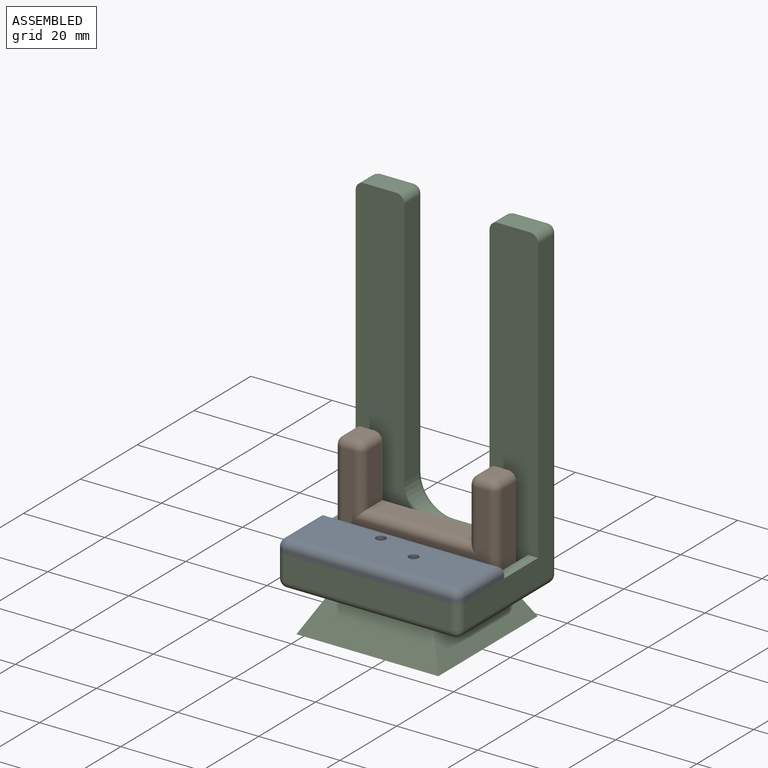
[diagram: assembled view]
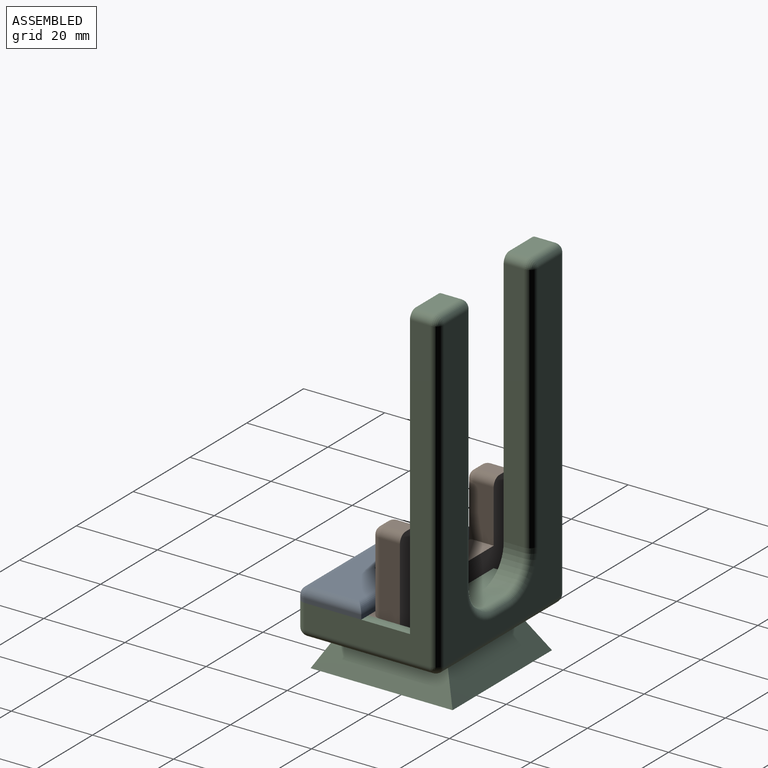
[diagram: assembled view, second angle]
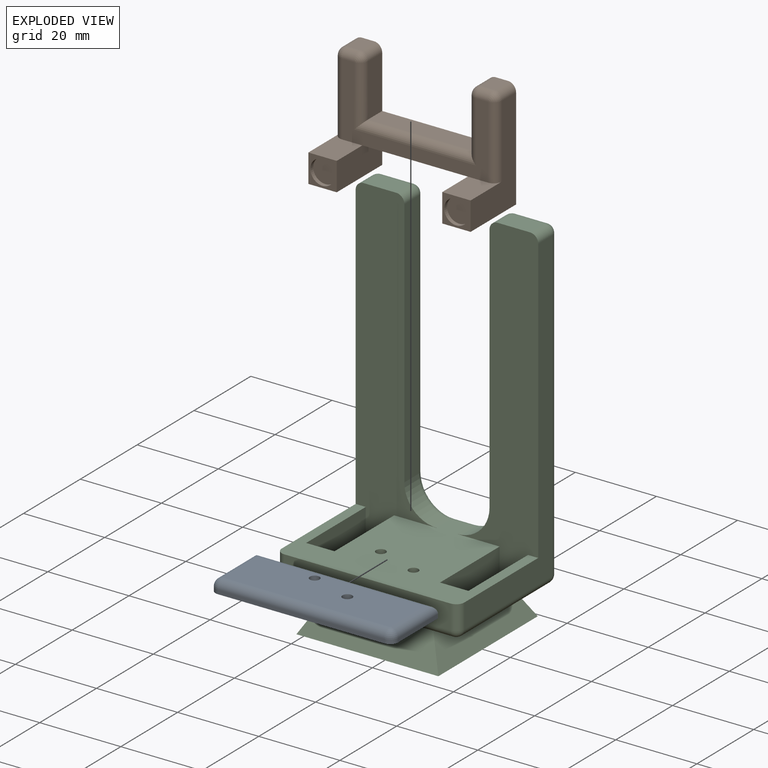
[diagram: exploded view]
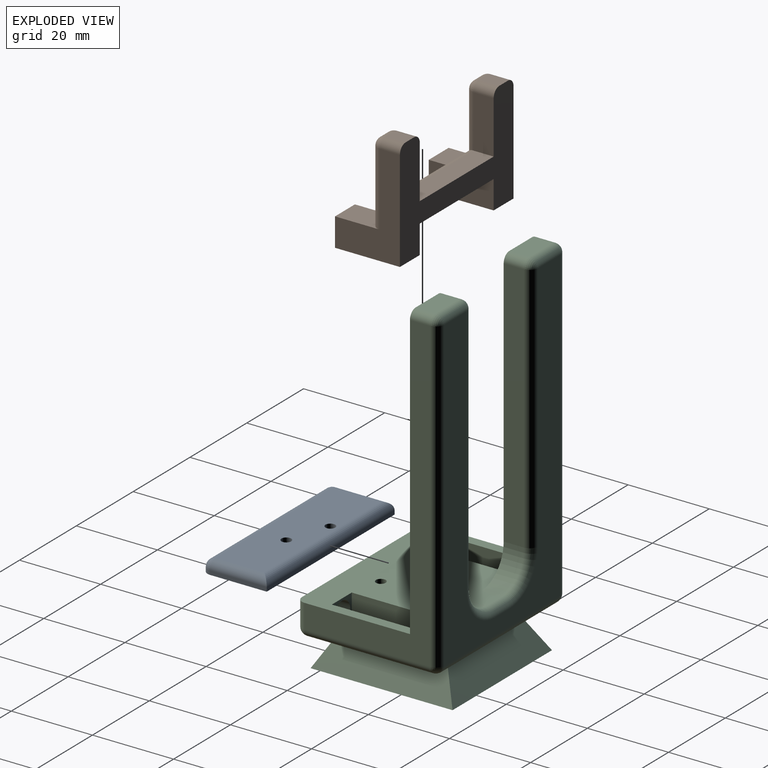
[diagram: exploded view, second angle]
ASSEMBLY  parts=3 mates=2
PART A: 16 faces, bbox 45x16x3 mm
  f0: plane 45x1mm, normal (0,1,0), area 45mm2, adj f1,f4,f7,f10
  f1: plane 14x1mm, normal (-1,0,0), area 14mm2, adj f0,f7,f12,f15
  f2: plane 41x1mm, normal (0,-1,0), area 41mm2, adj f7,f9,f13,f15
  f3: cylinder r=1.2mm len=3mm, axis (0,0,-1), area 22.6mm2, adj f6,f7
  f4: plane 14x1mm, normal (1,0,0), area 14mm2, adj f0,f7,f8,f9
  f5: cylinder r=1.2mm len=3mm, axis (0,0,-1), area 22.6mm2, adj f6,f7
  f6: plane 41x12mm, normal (0,0,1), area 483mm2, adj f3,f5,f8,f10,f12,f13
  f7: plane 45x16mm, normal (0,0,-1), area 709.2mm2, adj f0,f1,f2,f3,f4,f5,f9,f15
  f8: cylinder r=2mm len=14mm, axis (0,-1,0), area 41.7mm2, adj f4,f6,f10,f11
  f9: cylinder r=2mm len=2mm, axis (0,0,1), area 3.1mm2, adj f2,f4,f7,f11
  f10: cylinder r=2mm len=45mm, axis (1,0,0), area 136.8mm2, adj f0,f6,f8,f12
  f11: sphere r=2mm, area 6.3mm2, adj f8,f9,f13
  f12: cylinder r=2mm len=14mm, axis (0,1,0), area 41.7mm2, adj f1,f6,f10,f14
  f13: cylinder r=2mm len=41mm, axis (-1,0,0), area 128.8mm2, adj f2,f6,f11,f14
  f14: sphere r=2mm, area 6.3mm2, adj f12,f13,f15
  f15: cylinder r=2mm len=2mm, axis (0,0,-1), area 3.1mm2, adj f1,f2,f7,f14
PART B: 37 faces, bbox 40x16x27 mm
  f0: plane 16x7.01mm, normal (1,0,0), area 112mm2, adj f1,f3,f4,f5,f13
  f1: plane 11x7mm, normal (0,0,1), area 63.9mm2, adj f0,f2,f5,f19,f28
  f2: plane 25.01x16mm, normal (-1,0,0), area 202mm2, adj f1,f3,f4,f5,f22,f28
  f3: plane 16x7mm, normal (0,0,-1), area 112mm2, adj f0,f2,f4,f5
  f4: plane 40x27.01mm, normal (0,1,0), area 504.6mm2, adj f0,f2,f3,f9,f10,f11,f13,f14
  f5: plane 7x7mm, normal (0,-1,0), area 20.7mm2, adj f0,f1,f2,f3,f6
  f6: cylinder r=3mm len=6mm, axis (0,-1,0), area 18.8mm2, adj f5,f7
  f7: plane 6x6mm, normal (0,-1,0), area 28.3mm2, adj f6
  f8: plane 11x7mm, normal (0,0,1), area 63.9mm2, adj f9,f11,f12,f19,f26
  f9: plane 16x7mm, normal (-1,0,0), area 112mm2, adj f4,f8,f10,f12,f13
  f10: plane 16x7mm, normal (0,0,-1), area 112mm2, adj f4,f9,f11,f12
  f11: plane 25x16mm, normal (1,0,0), area 202mm2, adj f4,f8,f10,f12,f25,f26
  f12: plane 7x7mm, normal (0,-1,0), area 20.7mm2, adj f8,f9,f10,f11,f20
  f13: plane 26x7mm, normal (0,0,-1), area 182mm2, adj f0,f4,f9,f19
  f14: plane 5x3mm, normal (0,0,1), area 15mm2, adj f4,f22,f23,f32
  f15: plane 13x5mm, normal (1,0,0), area 65mm2, adj f4,f16,f23,f36
  f16: plane 26x5mm, normal (0,0,1), area 130mm2, adj f4,f15,f17,f35
  f17: plane 13x5mm, normal (-1,0,0), area 65mm2, adj f4,f16,f24,f33
  f18: plane 5x3mm, normal (0,0,1), area 15mm2, adj f4,f24,f25,f29
  f19: plane 36x18.01mm, normal (0,-1,0), area 198.3mm2, adj f1,f8,f13,f26,f28,f29,f32,f33
  f20: cylinder r=3mm len=6mm, axis (0,-1,0), area 18.8mm2, adj f12,f21
  f21: plane 6x6mm, normal (0,-1,0), area 28.3mm2, adj f20
  f22: cylinder r=2mm len=5mm, axis (0,-1,0), area 15.7mm2, adj f2,f4,f14,f30
  f23: cylinder r=2mm len=5mm, axis (0,-1,0), area 15.7mm2, adj f4,f14,f15,f34
  f24: cylinder r=2mm len=5mm, axis (0,1,0), area 15.7mm2, adj f4,f17,f18,f31
  f25: cylinder r=2mm len=5mm, axis (0,1,0), area 15.7mm2, adj f4,f11,f18,f27
  f26: cylinder r=2mm len=18mm, axis (0,0,1), area 56.5mm2, adj f8,f11,f19,f27
  f27: sphere r=2mm, area 8.6mm2, adj f25,f26,f29
  f28: cylinder r=2mm len=18.01mm, axis (0,0,-1), area 56.6mm2, adj f1,f2,f19,f30
  f29: cylinder r=2mm len=3mm, axis (-1,0,0), area 9.4mm2, adj f18,f19,f27,f31
  f30: sphere r=2mm, area 4mm2, adj f22,f28,f32
  f31: sphere r=2mm, area 4mm2, adj f24,f29,f33
  f32: cylinder r=2mm len=3mm, axis (-1,0,0), area 9.4mm2, adj f14,f19,f30,f34
  f33: cylinder r=2mm len=15mm, axis (0,0,-1), area 44mm2, adj f17,f19,f31,f35
  f34: sphere r=2mm, area 8.6mm2, adj f23,f32,f36
  f35: cylinder r=2mm len=30mm, axis (-1,0,0), area 88mm2, adj f16,f19,f33,f36
  f36: cylinder r=2mm len=15mm, axis (0,0,1), area 44mm2, adj f15,f19,f34,f35
PART C: 67 faces, bbox 45x35x89 mm
  f0: plane 45x33mm, normal (0,0,1), area 980.2mm2, adj f11,f12,f14,f17,f19,f22,f23,f25
  f1: plane 35x35mm, normal (0,0,-1), area 264mm2, adj f2,f3,f4,f5,f6,f7,f8,f9
  f2: plane 35x9mm, normal (0.87,0,0.49), area 308.9mm2, adj f1,f3,f5,f10
  f3: plane 35x9mm, normal (0,-0.87,0.49), area 308.9mm2, adj f1,f2,f4,f10
  f4: plane 35x9mm, normal (-0.87,0,0.49), area 308.9mm2, adj f1,f3,f5,f10
  f5: plane 35x9mm, normal (0,0.87,0.49), area 308.9mm2, adj f1,f2,f4,f10
  f6: plane 31x9mm, normal (0,0.87,-0.49), area 267.7mm2, adj f1,f7,f9,f15
  f7: plane 31x9mm, normal (0.87,0,-0.49), area 267.7mm2, adj f1,f6,f8,f15
  f8: plane 31x9mm, normal (0,-0.87,-0.49), area 267.7mm2, adj f1,f7,f9,f15
  f9: plane 31x9mm, normal (-0.87,0,-0.49), area 267.7mm2, adj f1,f6,f8,f15
  f10: plane 41x31mm, normal (0,0,-1), area 646mm2, adj f2,f3,f4,f5,f42,f43,f44,f45
  f11: plane 41x6mm, normal (0,-1,0), area 246mm2, adj f0,f43,f48,f50
  f12: plane 76x31mm, normal (-1,0,0), area 536mm2, adj f0,f19,f38,f45,f48,f65
  f13: plane 76x41mm, normal (0,1,0), area 1358.9mm2, adj f44,f53,f55,f57,f58,f59,f60,f61
  f14: plane 76x31mm, normal (1,0,0), area 536mm2, adj f0,f17,f40,f42,f50,f53
  f15: plane 21x21mm, normal (0,0,-1), area 441mm2, adj f6,f7,f8,f9
  f16: plane 8x5mm, normal (0,0,1), area 40mm2, adj f17,f40,f41,f55
  f17: plane 79x20mm, normal (0,-1,0), area 925mm2, adj f0,f14,f16,f18,f22,f24,f25,f40
  f18: plane 62x5mm, normal (-1,0,0), area 310mm2, adj f17,f41,f47,f57
  f19: plane 79.01x20mm, normal (0,-1,0), area 925.1mm2, adj f0,f12,f20,f21,f27,f28,f29,f38
  f20: plane 8x5mm, normal (0,0,1), area 40mm2, adj f19,f38,f39,f63
  f21: plane 62x5mm, normal (1,0,0), area 310mm2, adj f19,f39,f46,f61
  f22: plane 21x7mm, normal (1,0,0), area 147mm2, adj f0,f17,f23,f24
  f23: plane 7x7mm, normal (0,1,0), area 20.7mm2, adj f0,f22,f24,f25,f32
  f24: plane 21x7mm, normal (0,0,1), area 147mm2, adj f17,f22,f23,f25
  f25: plane 21x7mm, normal (-1,0,0), area 147mm2, adj f0,f17,f23,f24
  f26: plane 7.01x7mm, normal (0,1,0), area 20.8mm2, adj f0,f27,f28,f29,f30
  f27: plane 21x7.01mm, normal (-1,0,0), area 147.2mm2, adj f0,f19,f26,f29
  f28: plane 21x7.01mm, normal (1,0,0), area 147.2mm2, adj f0,f19,f26,f29
  f29: plane 21x7mm, normal (0,0,1), area 147mm2, adj f19,f26,f27,f28
  f30: cylinder r=3mm len=6mm, axis (0,1,0), area 113.1mm2, adj f26,f31
  f31: plane 6x6mm, normal (0,1,0), area 28.3mm2, adj f30
  f32: cylinder r=3mm len=6mm, axis (0,1,0), area 113.1mm2, adj f23,f33
  f33: plane 6x6mm, normal (0,1,0), area 28.3mm2, adj f32
  f34: cone r=0mm half-angle=59deg, axis (0,0,1), area 5.3mm2, adj f35
  f35: cylinder r=1.2mm len=2.4mm, axis (0,0,1), area 15.1mm2, adj f0,f34
  f36: cone r=0mm half-angle=59deg, axis (0,0,1), area 5.3mm2, adj f37
  f37: cylinder r=1.2mm len=2.4mm, axis (0,0,1), area 15.1mm2, adj f0,f36
  f38: cylinder r=2mm len=5mm, axis (0,1,0), area 15.7mm2, adj f12,f19,f20,f64
  f39: cylinder r=2mm len=5mm, axis (0,-1,0), area 15.7mm2, adj f19,f20,f21,f62
  f40: cylinder r=2mm len=5mm, axis (0,1,0), area 15.7mm2, adj f14,f16,f17,f54
  f41: cylinder r=2mm len=5mm, axis (0,1,0), area 15.7mm2, adj f16,f17,f18,f56
  f42: cylinder r=2mm len=31mm, axis (0,1,0), area 97.4mm2, adj f10,f14,f51,f52
  f43: cylinder r=2mm len=41mm, axis (1,0,0), area 128.8mm2, adj f10,f11,f49,f51
  f44: cylinder r=2mm len=41mm, axis (-1,0,0), area 128.8mm2, adj f10,f13,f52,f66
  f45: cylinder r=2mm len=31mm, axis (0,-1,0), area 97.4mm2, adj f10,f12,f49,f66
  f46: cylinder r=8mm len=8mm, axis (0,1,0), area 62.8mm2, adj f0,f19,f21,f60
  f47: cylinder r=8mm len=8mm, axis (0,1,0), area 62.8mm2, adj f0,f17,f18,f58
  f48: cylinder r=2mm len=6mm, axis (0,0,-1), area 18.8mm2, adj f0,f11,f12,f49
  f49: sphere r=2mm, area 6.3mm2, adj f43,f45,f48
  f50: cylinder r=2mm len=6mm, axis (0,0,1), area 18.8mm2, adj f0,f11,f14,f51
  f51: sphere r=2mm, area 6.3mm2, adj f42,f43,f50
  f52: sphere r=2mm, area 4mm2, adj f42,f44,f53
  f53: cylinder r=2mm len=76mm, axis (0,0,-1), area 238.8mm2, adj f13,f14,f52,f54
  f54: sphere r=2mm, area 8.6mm2, adj f40,f53,f55
  f55: cylinder r=2mm len=8mm, axis (-1,0,0), area 25.1mm2, adj f13,f16,f54,f56
  f56: sphere r=2mm, area 6.3mm2, adj f41,f55,f57
  f57: cylinder r=2mm len=62mm, axis (0,0,1), area 194.8mm2, adj f13,f18,f56,f58
  f58: torus R=10mm, axis (0,-1,0), area 43.1mm2, adj f13,f47,f57,f59
  f59: cylinder r=2mm len=5mm, axis (1,0,0), area 15.7mm2, adj f0,f13,f58,f60
  f60: torus R=10mm, axis (0,-1,0), area 43.1mm2, adj f13,f46,f59,f61
  f61: cylinder r=2mm len=62mm, axis (0,0,-1), area 194.8mm2, adj f13,f21,f60,f62
  f62: sphere r=2mm, area 8.6mm2, adj f39,f61,f63
  f63: cylinder r=2mm len=8mm, axis (1,0,0), area 25.1mm2, adj f13,f20,f62,f64
  f64: sphere r=2mm, area 6.3mm2, adj f38,f63,f65
  f65: cylinder r=2mm len=76mm, axis (0,0,1), area 238.8mm2, adj f12,f13,f64,f66
  f66: sphere r=2mm, area 8.6mm2, adj f44,f45,f65
PLACE A t=(-33.31,6.2,13.59)mm
PLACE B t=(-33.31,6.98,13.59)mm
PLACE C t=(-33.31,6.2,13.59)mm fixed
MATE fastened A.f3 <-> C.f36  axis (0,0,-1) through (-38.56,0.95,30.59)mm
MATE slider B.f6 <-> C.f30  axis (0,-1,0) through (-49.81,-2.52,27.09)mm
